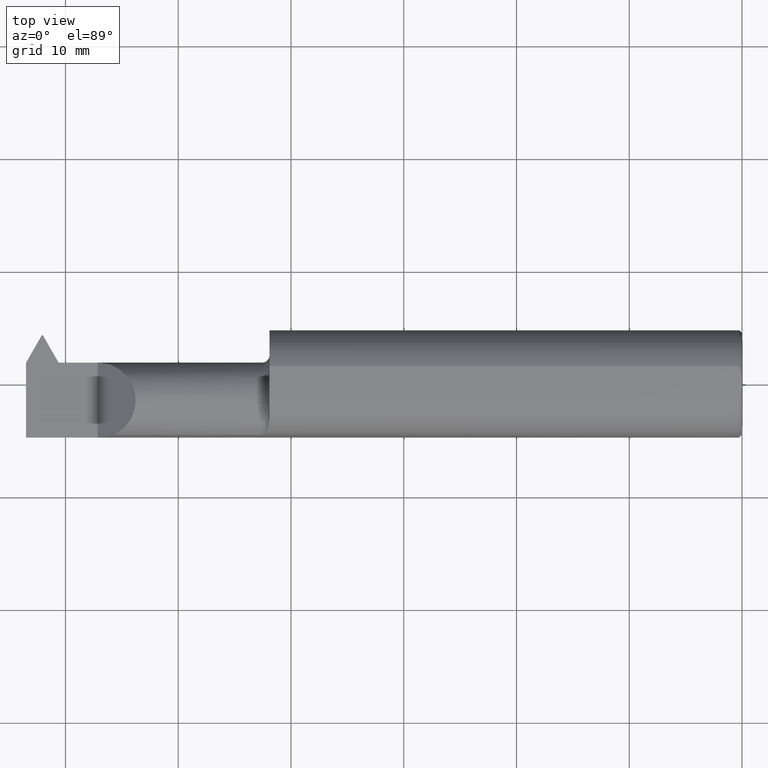
[diagram: clean part render]
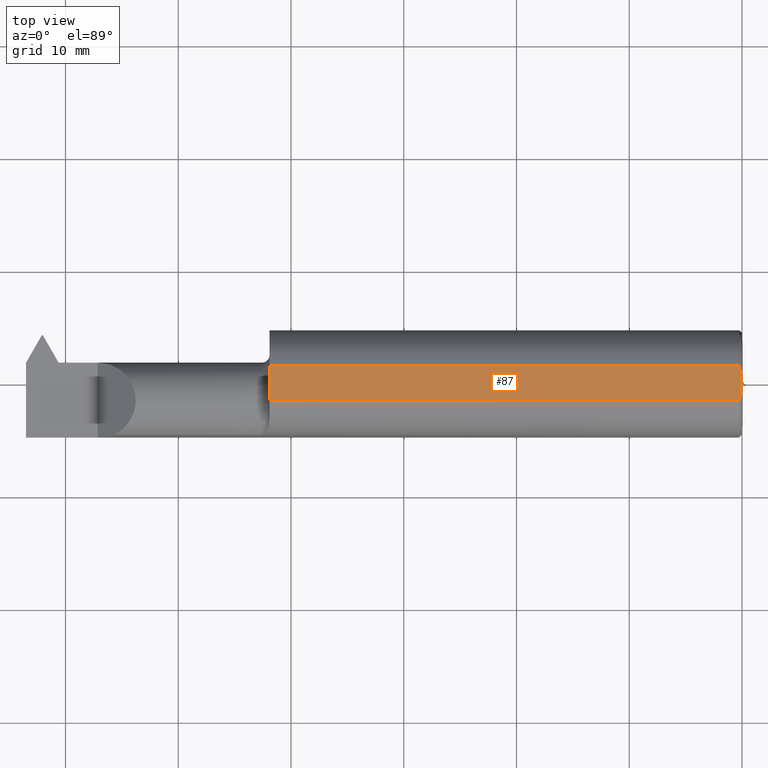
[diagram: same view with one face highlighted and labeled with its STEP entity id]
A machine part, top view. The second image highlights one B-rep face of the part: STEP entity #87.
In plain terms, the highlighted planar face has unit normal (-0, 0, -1).
Its self-contained STEP definition (entity closure, byte-faithful):
#12 = AXIS2_PLACEMENT_3D ( 'NONE', #184, #442, #299 ) ;
#22 = EDGE_CURVE ( 'NONE', #290, #119, #410, .T. ) ;
#45 = CARTESIAN_POINT ( 'NONE',  ( -4.969808731120575398E-33, 3.199103279729614531E-16, 0.1773500000000000909 ) ) ;
#79 = DIRECTION ( 'NONE',  ( 9.108622265535208572E-17, 1.000000000000000000, 1.608104540654733016E-16 ) ) ;
#81 = ORIENTED_EDGE ( 'NONE', *, *, #173, .T. ) ;
#87 = ADVANCED_FACE ( 'NONE', ( #387 ), #862, .F. ) ;
#119 = VERTEX_POINT ( 'NONE', #718 ) ;
#146 = CARTESIAN_POINT ( 'NONE',  ( -1.650000000000000133, 0.06039039658753678902, 0.1773500000000000909 ) ) ;
#173 = EDGE_CURVE ( 'NONE', #833, #874, #598, .T. ) ;
#184 = CARTESIAN_POINT ( 'NONE',  ( -2.500000000000000000, 0.2123500000000002053, 0.1773500000000001187 ) ) ;
#213 = CARTESIAN_POINT ( 'NONE',  ( -0.0009167640511158918265, 0.02059964124962103751, 0.1773500000000000909 ) ) ;
#228 = CARTESIAN_POINT ( 'NONE',  ( -0.006852151730285416242, 0.05062478141268286075, 0.1773500000000000909 ) ) ;
#241 = CARTESIAN_POINT ( 'NONE',  ( -0.006863038267947816837, -0.05065855487579175309, 0.1773500000000001187 ) ) ;
#262 = ORIENTED_EDGE ( 'NONE', *, *, #337, .F. ) ;
#290 = VERTEX_POINT ( 'NONE', #422 ) ;
#299 = DIRECTION ( 'NONE',  ( 0.000000000000000000, 1.000000000000000000, 1.608104540654733016E-16 ) ) ;
#316 = CARTESIAN_POINT ( 'NONE',  ( 5.171903141325568845E-16, -0.01026980879711894036, 0.1773500000000000909 ) ) ;
#329 = LINE ( 'NONE', #474, #675 ) ;
#337 = EDGE_CURVE ( 'NONE', #435, #874, #329, .T. ) ;
#349 = CARTESIAN_POINT ( 'NONE',  ( -1.650000000000000133, -0.06039039658753631717, 0.1773500000000000909 ) ) ;
#382 = CARTESIAN_POINT ( 'NONE',  ( -0.009999999999999073866, -0.06039039658753610901, 0.1773500000000000909 ) ) ;
#387 = FACE_OUTER_BOUND ( 'NONE', #812, .T. ) ;
#410 = B_SPLINE_CURVE_WITH_KNOTS ( 'NONE', 3,
 ( #382, #241, #636, #589, #316, #45 ),
 .UNSPECIFIED., .F., .F.,
 ( 4, 2, 4 ),
 ( 0.001950265285394878591, 0.002725445821525866816, 0.003500626357656855259 ),
 .UNSPECIFIED. ) ;
#422 = CARTESIAN_POINT ( 'NONE',  ( -0.009999999999999073866, -0.06039039658753610901, 0.1773500000000000909 ) ) ;
#429 = CARTESIAN_POINT ( 'NONE',  ( -0.004345633232307606099, 0.04072602595449463514, 0.1773500000000000909 ) ) ;
#435 = VERTEX_POINT ( 'NONE', #349 ) ;
#442 = DIRECTION ( 'NONE',  ( -2.498191301712524670E-33, 1.608104540654733016E-16, -1.000000000000000000 ) ) ;
#474 = CARTESIAN_POINT ( 'NONE',  ( -1.650000000000000133, 0.2123500000000001220, 0.1773500000000001187 ) ) ;
#509 = EDGE_CURVE ( 'NONE', #119, #833, #793, .T. ) ;
#539 = VECTOR ( 'NONE', #674, 39.37007874015748143 ) ;
#544 = CARTESIAN_POINT ( 'NONE',  ( -2.500000000000000000, -0.06039039658753642126, 0.1773500000000000909 ) ) ;
#563 = CARTESIAN_POINT ( 'NONE',  ( -0.009999999999999073866, 0.06039039658753679596, 0.1773500000000000909 ) ) ;
#589 = CARTESIAN_POINT ( 'NONE',  ( -0.0008974174807281084338, -0.02044204845470678697, 0.1773500000000000909 ) ) ;
#598 = LINE ( 'NONE', #741, #746 ) ;
#603 = ORIENTED_EDGE ( 'NONE', *, *, #845, .T. ) ;
#624 = ORIENTED_EDGE ( 'NONE', *, *, #22, .T. ) ;
#636 = CARTESIAN_POINT ( 'NONE',  ( -0.004318418993202907154, -0.04060972747957771606, 0.1773500000000000909 ) ) ;
#674 = DIRECTION ( 'NONE',  ( 1.000000000000000000, 1.224646799147352961E-16, -0.000000000000000000 ) ) ;
#675 = VECTOR ( 'NONE', #79, 39.37007874015748143 ) ;
#684 = CARTESIAN_POINT ( 'NONE',  ( 5.242517010058283000E-16, 0.01028390533945651962, 0.1773500000000001187 ) ) ;
#701 = ORIENTED_EDGE ( 'NONE', *, *, #509, .T. ) ;
#718 = CARTESIAN_POINT ( 'NONE',  ( -4.969808731120575398E-33, 3.199103279729614531E-16, 0.1773500000000000909 ) ) ;
#734 = CARTESIAN_POINT ( 'NONE',  ( -0.009999999999999073866, 0.06039039658753679596, 0.1773500000000000909 ) ) ;
#741 = CARTESIAN_POINT ( 'NONE',  ( -2.500000000000000000, 0.06039039658753648371, 0.1773500000000000909 ) ) ;
#746 = VECTOR ( 'NONE', #811, 39.37007874015748143 ) ;
#793 = B_SPLINE_CURVE_WITH_KNOTS ( 'NONE', 3,
 ( #836, #684, #213, #429, #228, #563 ),
 .UNSPECIFIED., .F., .F.,
 ( 4, 2, 4 ),
 ( 0.003500626357656855259, 0.004276870921898036533, 0.005053115486139217807 ),
 .UNSPECIFIED. ) ;
#811 = DIRECTION ( 'NONE',  ( -1.000000000000000000, -1.224646799147352961E-16, 0.000000000000000000 ) ) ;
#812 = EDGE_LOOP ( 'NONE', ( #262, #603, #624, #701, #81 ) ) ;
#817 = LINE ( 'NONE', #544, #539 ) ;
#833 = VERTEX_POINT ( 'NONE', #734 ) ;
#836 = CARTESIAN_POINT ( 'NONE',  ( -4.969808731120575398E-33, 3.199103279729614531E-16, 0.1773500000000000909 ) ) ;
#845 = EDGE_CURVE ( 'NONE', #435, #290, #817, .T. ) ;
#862 = PLANE ( 'NONE',  #12 ) ;
#874 = VERTEX_POINT ( 'NONE', #146 ) ;